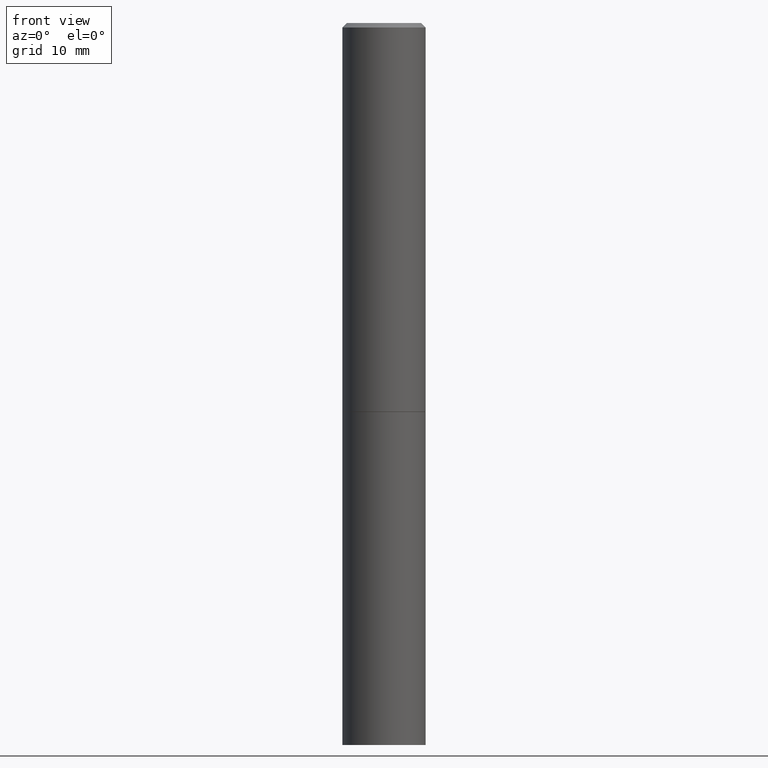
[diagram: clean part render]
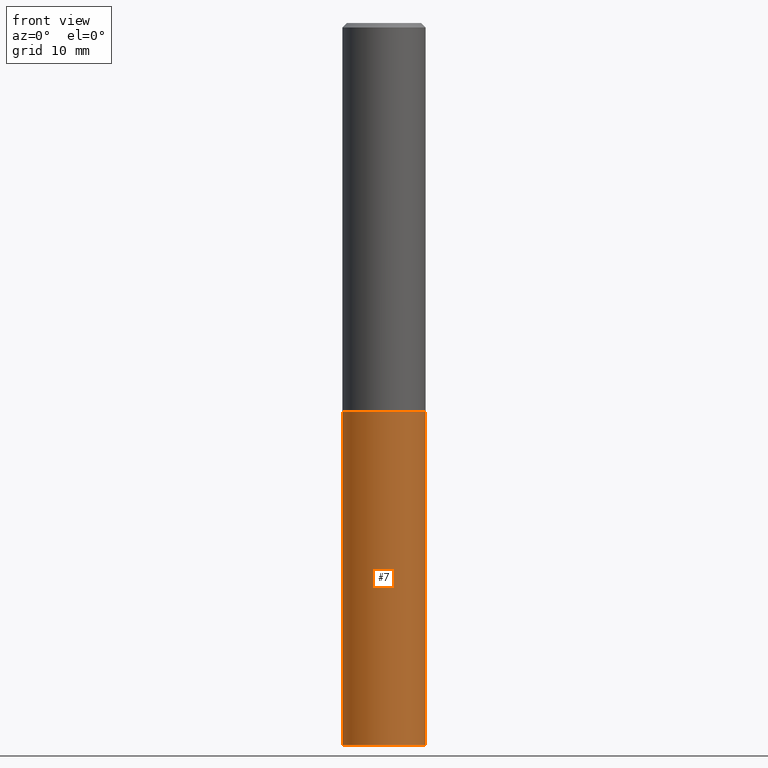
[diagram: same view with one face highlighted and labeled with its STEP entity id]
A machine part, front view. The second image highlights one B-rep face of the part: STEP entity #7.
In plain terms, the highlighted cylindrical surface (partial cylindrical patch) has radius 4.7625 mm, axis along (-0, 0, 1).
Its self-contained STEP definition (entity closure, byte-faithful):
#7 = ADVANCED_FACE ( 'NONE', ( #162 ), #346, .T. ) ;
#11 = ORIENTED_EDGE ( 'NONE', *, *, #349, .T. ) ;
#12 = CARTESIAN_POINT ( 'NONE',  ( 0.000000000000000000, 0.000000000000000000, 0.000000000000000000 ) ) ;
#15 = DIRECTION ( 'NONE',  ( 1.000000000000000000, -6.982962677686265922E-15, 4.876176775795935793E-29 ) ) ;
#20 = DIRECTION ( 'NONE',  ( -2.445468806185136877E-29, 3.491481338843145188E-15, 1.000000000000000000 ) ) ;
#63 = DIRECTION ( 'NONE',  ( 1.000000000000000000, -6.982962677686261189E-15, 0.000000000000000000 ) ) ;
#70 = CARTESIAN_POINT ( 'NONE',  ( 0.1875000000000000555, -7.419397845041680468E-15, -1.750000000000000222 ) ) ;
#89 = DIRECTION ( 'NONE',  ( -2.445468806185136597E-29, 3.491481338843145583E-15, 1.000000000000000000 ) ) ;
#102 = VERTEX_POINT ( 'NONE', #70 ) ;
#112 = CARTESIAN_POINT ( 'NONE',  ( -0.1875000000000000278, -7.396435717557677094E-15, -3.250000000000000000 ) ) ;
#124 = EDGE_CURVE ( 'NONE', #292, #102, #178, .T. ) ;
#129 = DIRECTION ( 'NONE',  ( -2.445468806185136877E-29, 3.491481338843145188E-15, 1.000000000000000000 ) ) ;
#130 = ORIENTED_EDGE ( 'NONE', *, *, #124, .F. ) ;
#146 = ORIENTED_EDGE ( 'NONE', *, *, #187, .F. ) ;
#151 = ORIENTED_EDGE ( 'NONE', *, *, #273, .T. ) ;
#159 = VECTOR ( 'NONE', #129, 39.37007874015748143 ) ;
#162 = FACE_OUTER_BOUND ( 'NONE', #181, .T. ) ;
#178 = CIRCLE ( 'NONE', #276, 0.1875000000000000555 ) ;
#181 = EDGE_LOOP ( 'NONE', ( #146, #151, #11, #130 ) ) ;
#183 = DIRECTION ( 'NONE',  ( -2.445468806185136597E-29, 3.491481338843145583E-15, 1.000000000000000000 ) ) ;
#187 = EDGE_CURVE ( 'NONE', #201, #292, #216, .T. ) ;
#189 = CARTESIAN_POINT ( 'NONE',  ( 0.1875000000000000555, -1.309305502066175205E-15, 9.142831454617382414E-30 ) ) ;
#200 = CIRCLE ( 'NONE', #260, 0.1875000000000000278 ) ;
#201 = VERTEX_POINT ( 'NONE', #112 ) ;
#203 = DIRECTION ( 'NONE',  ( -2.445468806185136597E-29, 3.491481338843145583E-15, 1.000000000000000000 ) ) ;
#210 = CARTESIAN_POINT ( 'NONE',  ( -0.1875000000000000555, 1.332267629550188243E-15, -9.223003294227950793E-30 ) ) ;
#216 = LINE ( 'NONE', #210, #159 ) ;
#237 = AXIS2_PLACEMENT_3D ( 'NONE', #12, #183, #15 ) ;
#243 = VERTEX_POINT ( 'NONE', #366 ) ;
#260 = AXIS2_PLACEMENT_3D ( 'NONE', #341, #203, #63 ) ;
#263 = CARTESIAN_POINT ( 'NONE',  ( -0.1875000000000000555, -7.396435717557675516E-15, -1.750000000000000222 ) ) ;
#273 = EDGE_CURVE ( 'NONE', #201, #243, #200, .T. ) ;
#276 = AXIS2_PLACEMENT_3D ( 'NONE', #365, #89, #362 ) ;
#292 = VERTEX_POINT ( 'NONE', #263 ) ;
#317 = VECTOR ( 'NONE', #20, 39.37007874015748143 ) ;
#341 = CARTESIAN_POINT ( 'NONE',  ( 7.947773620101693940E-29, -1.134731435124022443E-14, -3.250000000000000000 ) ) ;
#346 = CYLINDRICAL_SURFACE ( 'NONE', #237, 0.1875000000000000555 ) ;
#349 = EDGE_CURVE ( 'NONE', #243, #102, #353, .T. ) ;
#353 = LINE ( 'NONE', #189, #317 ) ;
#362 = DIRECTION ( 'NONE',  ( 1.000000000000000000, -6.982962677686265922E-15, 0.000000000000000000 ) ) ;
#365 = CARTESIAN_POINT ( 'NONE',  ( 4.279570410823989044E-29, -6.110092342975505460E-15, -1.750000000000000222 ) ) ;
#366 = CARTESIAN_POINT ( 'NONE',  ( 0.1875000000000000278, -1.265661985330639786E-14, -3.250000000000000000 ) ) ;